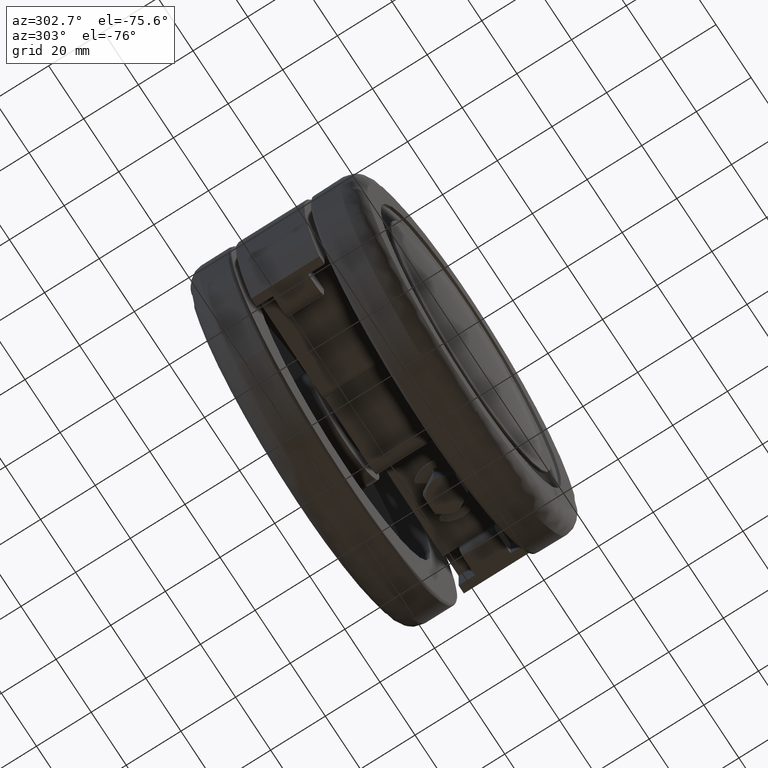
[diagram: clean part render]
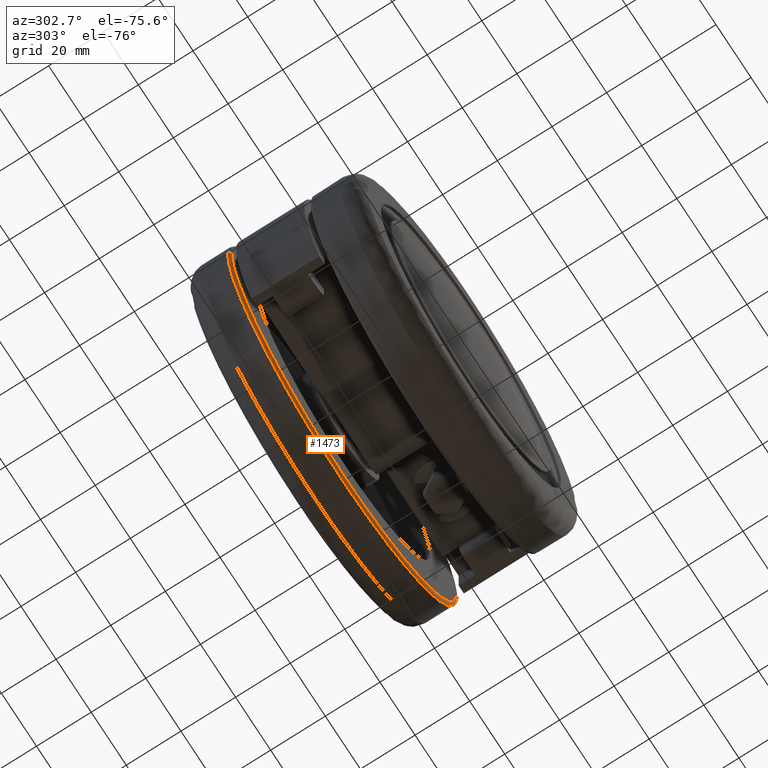
[diagram: same view with one face highlighted and labeled with its STEP entity id]
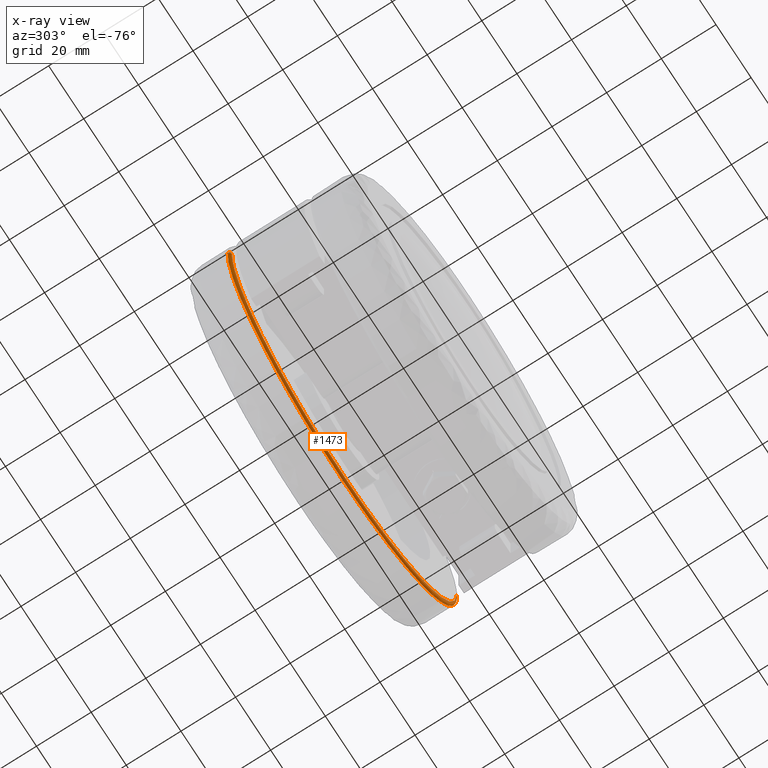
[diagram: x-ray of the same camera — body ghosted, the highlighted face saturated]
A machine part, auxiliary view. The second image highlights one B-rep face of the part: STEP entity #1473.
The next image is the same camera in x-ray: the body ghosted, the highlighted face saturated — about 0% of this face is hidden behind the body in this view.
In plain terms, the highlighted face is a freeform B-spline surface patch.
Its self-contained STEP definition (entity closure, byte-faithful):
#984=CARTESIAN_POINT('',(64.979472303413203,15.499999991183801,-1.633456203868221));
#985=VERTEX_POINT('',#984);
#986=CARTESIAN_POINT('',(45.333079169038598,15.499999997437561,-46.582313521904410));
#987=VERTEX_POINT('',#986);
#988=CARTESIAN_POINT('',(64.979472303413203,15.499999991183797,-1.633456203868221));
#989=CARTESIAN_POINT('',(64.313890829467510,15.499999994867556,-28.110525407278441));
#990=CARTESIAN_POINT('',(45.333079169038598,15.499999997437563,-46.582313521904410));
#998=(BOUNDED_CURVE()B_SPLINE_CURVE(2,(#988,#989,#990),.UNSPECIFIED.,.F.,.U.)B_SPLINE_CURVE_WITH_KNOTS((3,3),(0.254420108230469,0.377050650039290),.UNSPECIFIED.)CURVE()GEOMETRIC_REPRESENTATION_ITEM()RATIONAL_B_SPLINE_CURVE((0.989826157680952,0.851235858614421,0.853592803856744))REPRESENTATION_ITEM(''));
#999=EDGE_CURVE('',#985,#987,#998,.T.);
#1070=CARTESIAN_POINT('',(-43.913360245010722,15.499999999999950,-47.923029870740550));
#1071=VERTEX_POINT('',#1070);
#1077=CARTESIAN_POINT('',(-64.979472303413203,15.499999991183801,1.633456203868274));
#1078=VERTEX_POINT('',#1077);
#1079=CARTESIAN_POINT('',(-43.913360245010814,15.500000000000000,-47.923029870740649));
#1080=CARTESIAN_POINT('',(-65.0,15.500000000000004,-28.600687138755639));
#1081=CARTESIAN_POINT('',(-65.0,15.500000000000000,2.807088E-014));
#1082=CARTESIAN_POINT('',(-65.0,15.499999999999998,0.816857088071012));
#1083=CARTESIAN_POINT('',(-64.979472303413203,15.499999991183801,1.633456203868274));
#1091=(BOUNDED_CURVE()B_SPLINE_CURVE(2,(#1079,#1080,#1081,#1082,#1083),.UNSPECIFIED.,.F.,.U.)B_SPLINE_CURVE_WITH_KNOTS((3,2,3),(0.618415198846370,0.750000000000000,0.754420108230469),.UNSPECIFIED.)CURVE()GEOMETRIC_REPRESENTATION_ITEM()RATIONAL_B_SPLINE_CURVE((0.853959782101626,0.845838816172740,1.0,0.994821521091497,0.989826157680952))REPRESENTATION_ITEM(''));
#1092=EDGE_CURVE('',#1071,#1078,#1091,.T.);
#1141=CARTESIAN_POINT('',(0.0,15.500000000000000,-64.999999999999972));
#1142=VERTEX_POINT('',#1141);
#1143=CARTESIAN_POINT('',(45.333079169038598,15.499999997437563,-46.582313521904410));
#1144=CARTESIAN_POINT('',(26.407860013615533,15.499999999999996,-64.999999999999972));
#1145=CARTESIAN_POINT('',(0.0,15.500000000000000,-64.999999999999972));
#1153=(BOUNDED_CURVE()B_SPLINE_CURVE(2,(#1143,#1144,#1145),.UNSPECIFIED.,.F.,.U.)B_SPLINE_CURVE_WITH_KNOTS((3,3),(0.377050650039290,0.500000000000000),.UNSPECIFIED.)CURVE()GEOMETRIC_REPRESENTATION_ITEM()RATIONAL_B_SPLINE_CURVE((0.853592803856744,0.855955876555944,1.0))REPRESENTATION_ITEM(''));
#1154=EDGE_CURVE('',#987,#1142,#1153,.T.);
#1156=CARTESIAN_POINT('',(0.0,15.500000000000000,-64.999999999999972));
#1157=CARTESIAN_POINT('',(-25.277115033071698,15.500000000000002,-64.999999999999957));
#1158=CARTESIAN_POINT('',(-43.913360245010814,15.500000000000000,-47.923029870740649));
#1166=(BOUNDED_CURVE()B_SPLINE_CURVE(2,(#1156,#1157,#1158),.UNSPECIFIED.,.F.,.U.)B_SPLINE_CURVE_WITH_KNOTS((3,3),(0.500000000000000,0.618415198846370),.UNSPECIFIED.)CURVE()GEOMETRIC_REPRESENTATION_ITEM()RATIONAL_B_SPLINE_CURVE((1.0,0.861267965013807,0.853959782101626))REPRESENTATION_ITEM(''));
#1167=EDGE_CURVE('',#1142,#1071,#1166,.T.);
#1384=CARTESIAN_POINT('',(-64.977039379322747,15.569724188743198,1.633395044887690));
#1385=CARTESIAN_POINT('',(-66.610434424210425,15.569724188743319,-63.343644334435020));
#1386=CARTESIAN_POINT('',(-1.633395044887680,15.569724188743319,-64.977039379322719));
#1387=CARTESIAN_POINT('',(63.343644334435055,15.569724188743319,-66.610434424210382));
#1388=CARTESIAN_POINT('',(64.977039379322747,15.569724188743210,-1.633395044887656));
#1389=CARTESIAN_POINT('',(-65.057187002172157,14.422664216261229,1.635409798580258));
#1390=CARTESIAN_POINT('',(-66.692596800752426,14.422664216261348,-63.421777203591866));
#1391=CARTESIAN_POINT('',(-1.635409798580250,14.422664216261349,-65.057187002172128));
#1392=CARTESIAN_POINT('',(63.421777203591894,14.422664216261355,-66.692596800752369));
#1393=CARTESIAN_POINT('',(65.057187002172157,14.422664216261234,-1.635409798580228));
#1394=CARTESIAN_POINT('',(-63.910459353969593,14.502407655551716,1.606583319622434));
#1395=CARTESIAN_POINT('',(-65.517042673592030,14.502407655551824,-62.303876034347148));
#1396=CARTESIAN_POINT('',(-1.606583319622426,14.502407655551837,-63.910459353969564));
#1397=CARTESIAN_POINT('',(62.303876034347148,14.502407655551835,-65.517042673592002));
#1398=CARTESIAN_POINT('',(63.910459353969593,14.502407655551716,-1.606583319622403));
#1406=(BOUNDED_SURFACE()B_SPLINE_SURFACE(2,2,((#1384,#1389,#1394),(#1385,#1390,#1395),(#1386,#1391,#1396),(#1387,#1392,#1397),(#1388,#1393,#1398)),.UNSPECIFIED.,.F.,.F.,.U.)B_SPLINE_SURFACE_WITH_KNOTS((3,2,3),(3,3),(0.0,107.691493942949190,215.382987885898390),(0.0,1.822370436461392),.UNSPECIFIED.)GEOMETRIC_REPRESENTATION_ITEM()RATIONAL_B_SPLINE_SURFACE(((0.910892943119429,0.599412915015239,0.915966658337646),(0.644098577014720,0.423848936938071,0.647686235451331),(0.910892943119429,0.599412915015239,0.915966658337646),(0.644098577014720,0.423848936938071,0.647686235451331),(0.910892943119429,0.599412915015239,0.915966658337646)))REPRESENTATION_ITEM('')SURFACE());
#1407=CARTESIAN_POINT('',(0.0,14.500000000000000,-63.999999999999972));
#1408=VERTEX_POINT('',#1407);
#1409=CARTESIAN_POINT('',(-63.979788318711407,14.500000000000041,1.608326112856311));
#1410=VERTEX_POINT('',#1409);
#1411=CARTESIAN_POINT('',(0.0,14.500000000000000,-63.999999999999972));
#1412=CARTESIAN_POINT('',(-64.000000000000014,14.500000000000000,-63.999999999999972));
#1413=CARTESIAN_POINT('',(-64.0,14.500000000000000,2.625985E-014));
#1414=CARTESIAN_POINT('',(-64.0,14.500000000000004,0.804290055236504));
#1415=CARTESIAN_POINT('',(-63.979788318711414,14.500000000000041,1.608326112856311));
#1423=(BOUNDED_CURVE()B_SPLINE_CURVE(2,(#1411,#1412,#1413,#1414,#1415),.UNSPECIFIED.,.F.,.U.)B_SPLINE_CURVE_WITH_KNOTS((3,2,3),(0.500000000000000,0.750000000000000,0.754420108226585),.UNSPECIFIED.)CURVE()GEOMETRIC_REPRESENTATION_ITEM()RATIONAL_B_SPLINE_CURVE((1.0,0.707106781186548,1.0,0.994821521096047,0.989826157689730))REPRESENTATION_ITEM(''));
#1424=EDGE_CURVE('',#1408,#1410,#1423,.T.);
#1425=ORIENTED_EDGE('',*,*,#1424,.T.);
#1426=CARTESIAN_POINT('',(-64.979472303413203,15.499999991183804,1.633456203868274));
#1427=CARTESIAN_POINT('',(-64.979472285787651,14.500000409256446,1.633456203373862));
#1428=CARTESIAN_POINT('',(-63.979788318711421,14.500000000000043,1.608326112856311));
#1436=(BOUNDED_CURVE()B_SPLINE_CURVE(2,(#1426,#1427,#1428),.UNSPECIFIED.,.F.,.U.)B_SPLINE_CURVE_WITH_KNOTS((3,3),(-1.723441263830628,-0.263587302493186),.UNSPECIFIED.)CURVE()GEOMETRIC_REPRESENTATION_ITEM()RATIONAL_B_SPLINE_CURVE((0.883897560740337,0.626638805135709,0.888510257102546))REPRESENTATION_ITEM(''));
#1437=EDGE_CURVE('',#1078,#1410,#1436,.T.);
#1438=ORIENTED_EDGE('',*,*,#1437,.F.);
#1439=ORIENTED_EDGE('',*,*,#1092,.F.);
#1440=ORIENTED_EDGE('',*,*,#1167,.F.);
#1441=ORIENTED_EDGE('',*,*,#1154,.F.);
#1442=ORIENTED_EDGE('',*,*,#999,.F.);
#1443=CARTESIAN_POINT('',(63.979788114221840,14.500000000000000,-1.608326108375847));
#1444=VERTEX_POINT('',#1443);
#1445=CARTESIAN_POINT('',(64.979472303413203,15.499999991183799,-1.633456203868220));
#1446=CARTESIAN_POINT('',(64.979472285787622,14.500000000181368,-1.633456203373800));
#1447=CARTESIAN_POINT('',(63.979788114221840,14.500000000000005,-1.608326108375847));
#1455=(BOUNDED_CURVE()B_SPLINE_CURVE(2,(#1445,#1446,#1447),.UNSPECIFIED.,.F.,.U.)B_SPLINE_CURVE_WITH_KNOTS((3,3),(-1.723441263830623,-0.263586879115540),.UNSPECIFIED.)CURVE()GEOMETRIC_REPRESENTATION_ITEM()RATIONAL_B_SPLINE_CURVE((0.883897560740335,0.626638730527146,0.888510408995207))REPRESENTATION_ITEM(''));
#1456=EDGE_CURVE('',#985,#1444,#1455,.T.);
#1457=ORIENTED_EDGE('',*,*,#1456,.T.);
#1458=CARTESIAN_POINT('',(63.979788114221840,14.500000000000004,-1.608326108375847));
#1459=CARTESIAN_POINT('',(62.411384075561550,14.500000000000009,-63.999999999999979));
#1460=CARTESIAN_POINT('',(0.0,14.500000000000000,-63.999999999999972));
#1468=(BOUNDED_CURVE()B_SPLINE_CURVE(2,(#1458,#1459,#1460),.UNSPECIFIED.,.F.,.U.)B_SPLINE_CURVE_WITH_KNOTS((3,3),(0.254420108230193,0.500000000000000),.UNSPECIFIED.)CURVE()GEOMETRIC_REPRESENTATION_ITEM()RATIONAL_B_SPLINE_CURVE((0.989826157681576,0.712285260094727,1.0))REPRESENTATION_ITEM(''));
#1469=EDGE_CURVE('',#1444,#1408,#1468,.T.);
#1470=ORIENTED_EDGE('',*,*,#1469,.T.);
#1471=EDGE_LOOP('',(#1425,#1438,#1439,#1440,#1441,#1442,#1457,#1470));
#1472=FACE_OUTER_BOUND('',#1471,.T.);
#1473=ADVANCED_FACE('',(#1472),#1406,.T.);